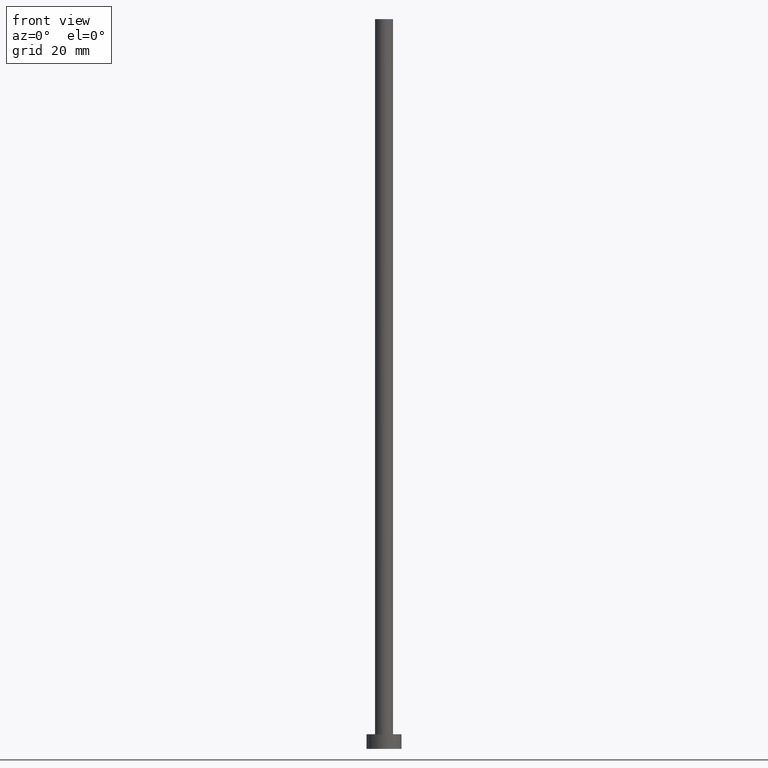
[diagram: clean part render]
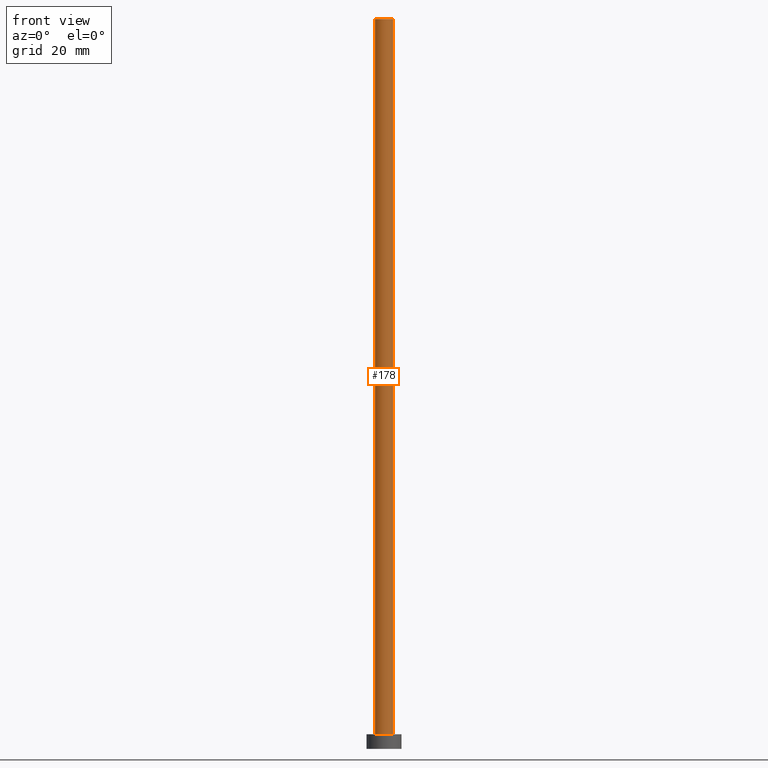
[diagram: same view with one face highlighted and labeled with its STEP entity id]
A machine part, front view. The second image highlights one B-rep face of the part: STEP entity #178.
In plain terms, the highlighted cylindrical surface (edge-blend (fillet) strip) has radius 3.1 mm, axis along (-0, -0, -1).
Its self-contained STEP definition (entity closure, byte-faithful):
#4 = DIRECTION ( 'NONE',  ( -0.000000000000000000, -0.000000000000000000, -1.000000000000000000 ) ) ;
#5 = EDGE_CURVE ( 'NONE', #32, #56, #54, .T. ) ;
#9 = EDGE_CURVE ( 'NONE', #96, #78, #16, .T. ) ;
#16 = LINE ( 'NONE', #98, #137 ) ;
#25 = DIRECTION ( 'NONE',  ( 0.000000000000000000, 0.000000000000000000, 1.000000000000000000 ) ) ;
#32 = VERTEX_POINT ( 'NONE', #77 ) ;
#35 = ORIENTED_EDGE ( 'NONE', *, *, #5, .F. ) ;
#45 = AXIS2_PLACEMENT_3D ( 'NONE', #228, #206, #109 ) ;
#54 = LINE ( 'NONE', #136, #226 ) ;
#56 = VERTEX_POINT ( 'NONE', #163 ) ;
#77 = CARTESIAN_POINT ( 'NONE',  ( 3.100000000000000089, 3.796405077356794918E-16, 250.0000000000000000 ) ) ;
#78 = VERTEX_POINT ( 'NONE', #80 ) ;
#80 = CARTESIAN_POINT ( 'NONE',  ( -3.100000000000000089, 0.000000000000000000, 5.000000000000000000 ) ) ;
#86 = FACE_OUTER_BOUND ( 'NONE', #151, .T. ) ;
#96 = VERTEX_POINT ( 'NONE', #111 ) ;
#98 = CARTESIAN_POINT ( 'NONE',  ( -3.100000000000000089, 0.000000000000000000, 250.0000000000000000 ) ) ;
#101 = AXIS2_PLACEMENT_3D ( 'NONE', #243, #25, #148 ) ;
#109 = DIRECTION ( 'NONE',  ( 1.000000000000000000, 0.000000000000000000, 0.000000000000000000 ) ) ;
#110 = CARTESIAN_POINT ( 'NONE',  ( 0.000000000000000000, 0.000000000000000000, 250.0000000000000000 ) ) ;
#111 = CARTESIAN_POINT ( 'NONE',  ( -3.100000000000000089, 0.000000000000000000, 250.0000000000000000 ) ) ;
#123 = ORIENTED_EDGE ( 'NONE', *, *, #9, .T. ) ;
#136 = CARTESIAN_POINT ( 'NONE',  ( 3.100000000000000089, 3.796405077356794918E-16, 250.0000000000000000 ) ) ;
#137 = VECTOR ( 'NONE', #250, 1000.000000000000000 ) ;
#148 = DIRECTION ( 'NONE',  ( 1.000000000000000000, 0.000000000000000000, 0.000000000000000000 ) ) ;
#149 = CIRCLE ( 'NONE', #101, 3.100000000000000089 ) ;
#151 = EDGE_LOOP ( 'NONE', ( #35, #232, #123, #157 ) ) ;
#157 = ORIENTED_EDGE ( 'NONE', *, *, #169, .T. ) ;
#162 = EDGE_CURVE ( 'NONE', #96, #32, #149, .T. ) ;
#163 = CARTESIAN_POINT ( 'NONE',  ( 3.100000000000000089, 3.796405077356794918E-16, 5.000000000000000000 ) ) ;
#165 = AXIS2_PLACEMENT_3D ( 'NONE', #110, #4, #187 ) ;
#168 = CYLINDRICAL_SURFACE ( 'NONE', #165, 3.100000000000000089 ) ;
#169 = EDGE_CURVE ( 'NONE', #78, #56, #236, .T. ) ;
#178 = ADVANCED_FACE ( 'NONE', ( #86 ), #168, .T. ) ;
#187 = DIRECTION ( 'NONE',  ( -1.000000000000000000, 0.000000000000000000, 0.000000000000000000 ) ) ;
#198 = DIRECTION ( 'NONE',  ( -0.000000000000000000, -0.000000000000000000, -1.000000000000000000 ) ) ;
#206 = DIRECTION ( 'NONE',  ( 0.000000000000000000, 0.000000000000000000, 1.000000000000000000 ) ) ;
#226 = VECTOR ( 'NONE', #198, 1000.000000000000000 ) ;
#228 = CARTESIAN_POINT ( 'NONE',  ( 0.000000000000000000, 0.000000000000000000, 5.000000000000000000 ) ) ;
#232 = ORIENTED_EDGE ( 'NONE', *, *, #162, .F. ) ;
#236 = CIRCLE ( 'NONE', #45, 3.100000000000000089 ) ;
#243 = CARTESIAN_POINT ( 'NONE',  ( 0.000000000000000000, 0.000000000000000000, 250.0000000000000000 ) ) ;
#250 = DIRECTION ( 'NONE',  ( -0.000000000000000000, -0.000000000000000000, -1.000000000000000000 ) ) ;